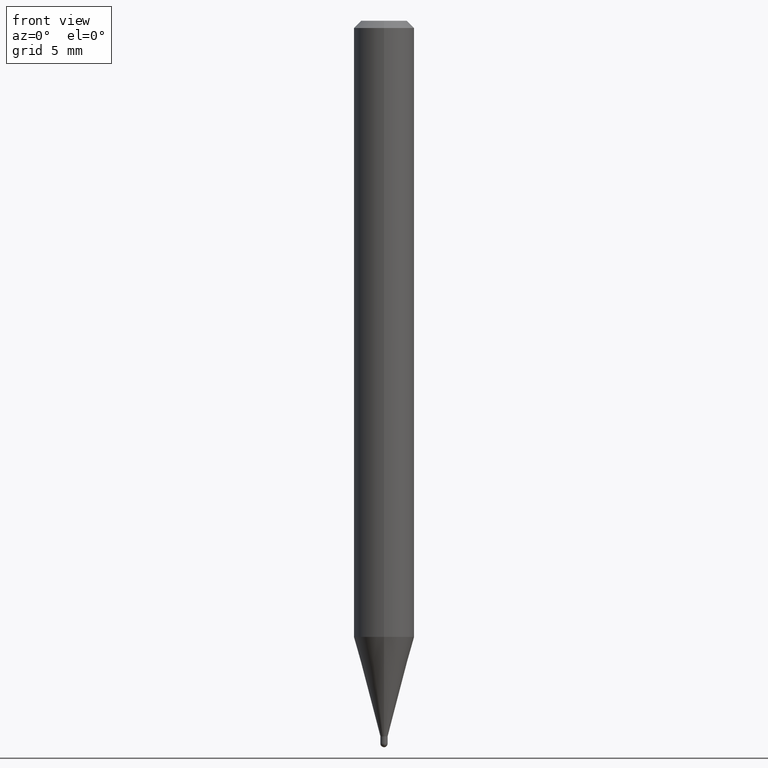
[diagram: clean part render]
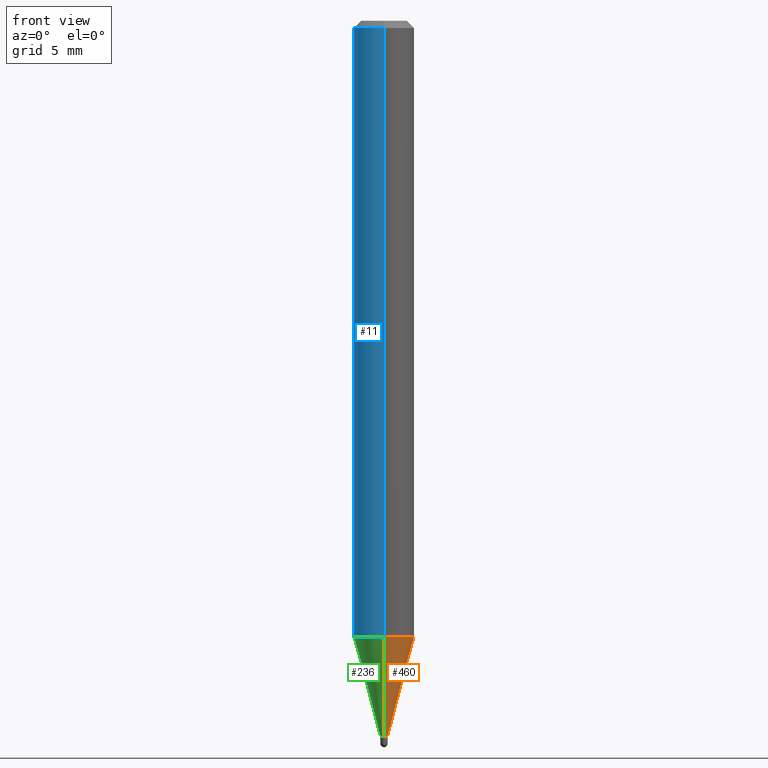
[diagram: same view with three faces highlighted in distinct colors, each labeled with its STEP entity id]
A machine part, front view with three faces highlighted in distinct colors.
Their STEP definitions:

[orange] entity #460 — the highlighted conical surface has half-angle 15 deg.
#29 = VERTEX_POINT ( 'NONE', #418 ) ;
#48 = CARTESIAN_POINT ( 'NONE',  ( -5.237222008261413811E-17, -0.007500000000005628033, -1.477500000000000036 ) ) ;
#59 = CARTESIAN_POINT ( 'NONE',  ( 3.613188878976562121E-29, -5.158651193700510318E-15, -1.477500000000000036 ) ) ;
#66 = CARTESIAN_POINT ( 'NONE',  ( 2.486899575160704889E-16, 0.007499999999995310765, -1.477500000000000036 ) ) ;
#72 = EDGE_LOOP ( 'NONE', ( #116, #442, #481, #152 ) ) ;
#82 = EDGE_CURVE ( 'NONE', #387, #86, #413, .T. ) ;
#86 = VERTEX_POINT ( 'NONE', #66 ) ;
#101 = AXIS2_PLACEMENT_3D ( 'NONE', #464, #147, #257 ) ;
#116 = ORIENTED_EDGE ( 'NONE', *, *, #82, .T. ) ;
#118 = LINE ( 'NONE', #199, #164 ) ;
#119 = CARTESIAN_POINT ( 'NONE',  ( 5.329070518204697350E-17, 0.007499999999995310765, -1.477500000000000036 ) ) ;
#129 = EDGE_CURVE ( 'NONE', #86, #207, #318, .T. ) ;
#147 = DIRECTION ( 'NONE',  ( -2.445474706583121780E-29, 3.491472889137400899E-15, 1.000000000000000000 ) ) ;
#151 = AXIS2_PLACEMENT_3D ( 'NONE', #59, #485, #215 ) ;
#152 = ORIENTED_EDGE ( 'NONE', *, *, #217, .F. ) ;
#158 = DIRECTION ( 'NONE',  ( 1.839019923739649619E-15, 0.2588190451025318972, 0.9659258262890650926 ) ) ;
#164 = VECTOR ( 'NONE', #229, 39.37007874015748854 ) ;
#188 = AXIS2_PLACEMENT_3D ( 'NONE', #421, #381, #423 ) ;
#199 = CARTESIAN_POINT ( 'NONE',  ( -5.237222008261413811E-17, -0.007500000000005628033, -1.477500000000000036 ) ) ;
#207 = VERTEX_POINT ( 'NONE', #438 ) ;
#215 = DIRECTION ( 'NONE',  ( -6.982962677686265133E-15, -1.000000000000000000, 0.000000000000000000 ) ) ;
#217 = EDGE_CURVE ( 'NONE', #387, #29, #118, .T. ) ;
#229 = DIRECTION ( 'NONE',  ( -1.807323732225379049E-15, -0.2588190451025252359, 0.9659258262890670910 ) ) ;
#257 = DIRECTION ( 'NONE',  ( -6.982962677686265133E-15, -1.000000000000000000, 0.000000000000000000 ) ) ;
#264 = CONICAL_SURFACE ( 'NONE', #151, 0.007500000000000469833, 0.2617993877991575125 ) ;
#318 = LINE ( 'NONE', #119, #385 ) ;
#326 = FACE_OUTER_BOUND ( 'NONE', #72, .T. ) ;
#336 = CIRCLE ( 'NONE', #188, 0.06250000000000000000 ) ;
#381 = DIRECTION ( 'NONE',  ( -2.445474706583121780E-29, 3.491472889137400899E-15, 1.000000000000000000 ) ) ;
#385 = VECTOR ( 'NONE', #158, 39.37007874015748854 ) ;
#387 = VERTEX_POINT ( 'NONE', #48 ) ;
#413 = CIRCLE ( 'NONE', #101, 0.007500000000000469833 ) ;
#418 = CARTESIAN_POINT ( 'NONE',  ( -4.364351673553606080E-16, -0.06250000000000444089, -1.272237205583719888 ) ) ;
#421 = CARTESIAN_POINT ( 'NONE',  ( 3.111223907028978359E-29, -4.441981711847484766E-15, -1.272237205583720110 ) ) ;
#423 = DIRECTION ( 'NONE',  ( -6.982962677686265922E-15, -1.000000000000000000, 4.370956789862821150E-15 ) ) ;
#438 = CARTESIAN_POINT ( 'NONE',  ( 4.440892098500935790E-16, 0.06249999999999555911, -1.272237205583720332 ) ) ;
#442 = ORIENTED_EDGE ( 'NONE', *, *, #129, .T. ) ;
#460 = ADVANCED_FACE ( 'NONE', ( #326 ), #264, .T. ) ;
#464 = CARTESIAN_POINT ( 'NONE',  ( 3.613188878976562121E-29, -5.158651193700510318E-15, -1.477500000000000036 ) ) ;
#481 = ORIENTED_EDGE ( 'NONE', *, *, #506, .F. ) ;
#485 = DIRECTION ( 'NONE',  ( -2.445474706583121780E-29, 3.491472889137400899E-15, 1.000000000000000000 ) ) ;
#506 = EDGE_CURVE ( 'NONE', #29, #207, #336, .T. ) ;

[blue] entity #11 — the highlighted cylindrical surface (edge-blend (fillet) strip) has radius 1.5875 mm, axis along (-0, 0, 1).
#5 = LINE ( 'NONE', #482, #225 ) ;
#10 = DIRECTION ( 'NONE',  ( -2.445474706583121780E-29, 3.491472889137400899E-15, 1.000000000000000000 ) ) ;
#11 = ADVANCED_FACE ( 'NONE', ( #261 ), #297, .T. ) ;
#29 = VERTEX_POINT ( 'NONE', #418 ) ;
#43 = ORIENTED_EDGE ( 'NONE', *, *, #342, .F. ) ;
#44 = CIRCLE ( 'NONE', #370, 0.06250000000000000000 ) ;
#52 = CARTESIAN_POINT ( 'NONE',  ( 4.440892098500625669E-16, 0.06250000000000000000, -2.182170555710875562E-16 ) ) ;
#81 = VECTOR ( 'NONE', #448, 39.37007874015748143 ) ;
#84 = VERTEX_POINT ( 'NONE', #461 ) ;
#88 = EDGE_LOOP ( 'NONE', ( #43, #483, #404, #426 ) ) ;
#96 = CARTESIAN_POINT ( 'NONE',  ( 4.440892098500938748E-16, 0.06249999999999995143, -0.01500000000000028394 ) ) ;
#111 = DIRECTION ( 'NONE',  ( -2.445474706583121780E-29, 3.491472889137400899E-15, 1.000000000000000000 ) ) ;
#179 = AXIS2_PLACEMENT_3D ( 'NONE', #429, #111, #184 ) ;
#184 = DIRECTION ( 'NONE',  ( -6.982962677686265922E-15, -1.000000000000000000, 3.491472889137400899E-15 ) ) ;
#204 = DIRECTION ( 'NONE',  ( -6.982962677686265922E-15, -1.000000000000000000, 4.370956789862821150E-15 ) ) ;
#207 = VERTEX_POINT ( 'NONE', #438 ) ;
#225 = VECTOR ( 'NONE', #281, 39.37007874015748143 ) ;
#240 = AXIS2_PLACEMENT_3D ( 'NONE', #284, #450, #317 ) ;
#261 = FACE_OUTER_BOUND ( 'NONE', #88, .T. ) ;
#281 = DIRECTION ( 'NONE',  ( -2.445474706583121780E-29, 3.491472889137400899E-15, 1.000000000000000000 ) ) ;
#284 = CARTESIAN_POINT ( 'NONE',  ( 3.668212059874699521E-31, -5.237209333706124349E-17, -0.01500000000000006710 ) ) ;
#297 = CYLINDRICAL_SURFACE ( 'NONE', #179, 0.06250000000000000000 ) ;
#306 = EDGE_CURVE ( 'NONE', #29, #84, #5, .T. ) ;
#317 = DIRECTION ( 'NONE',  ( -6.982962677686265922E-15, -1.000000000000000000, 3.483106191921935554E-15 ) ) ;
#324 = LINE ( 'NONE', #52, #81 ) ;
#342 = EDGE_CURVE ( 'NONE', #207, #355, #324, .T. ) ;
#348 = EDGE_CURVE ( 'NONE', #207, #29, #44, .T. ) ;
#355 = VERTEX_POINT ( 'NONE', #96 ) ;
#367 = CARTESIAN_POINT ( 'NONE',  ( 3.111223907028978359E-29, -4.441981711847484766E-15, -1.272237205583720110 ) ) ;
#370 = AXIS2_PLACEMENT_3D ( 'NONE', #367, #10, #204 ) ;
#394 = EDGE_CURVE ( 'NONE', #355, #84, #469, .T. ) ;
#404 = ORIENTED_EDGE ( 'NONE', *, *, #306, .T. ) ;
#418 = CARTESIAN_POINT ( 'NONE',  ( -4.364351673553606080E-16, -0.06250000000000444089, -1.272237205583719888 ) ) ;
#426 = ORIENTED_EDGE ( 'NONE', *, *, #394, .F. ) ;
#429 = CARTESIAN_POINT ( 'NONE',  ( 0.000000000000000000, 0.000000000000000000, 0.000000000000000000 ) ) ;
#438 = CARTESIAN_POINT ( 'NONE',  ( 4.440892098500935790E-16, 0.06249999999999555911, -1.272237205583720332 ) ) ;
#448 = DIRECTION ( 'NONE',  ( -2.445474706583121780E-29, 3.491472889137400899E-15, 1.000000000000000000 ) ) ;
#450 = DIRECTION ( 'NONE',  ( -2.445474706583121780E-29, 3.491472889137400899E-15, 1.000000000000000000 ) ) ;
#461 = CARTESIAN_POINT ( 'NONE',  ( -4.364351673553912750E-16, -0.06250000000000005551, -0.01499999999999984852 ) ) ;
#469 = CIRCLE ( 'NONE', #240, 0.06250000000000000000 ) ;
#482 = CARTESIAN_POINT ( 'NONE',  ( -4.364351673553916201E-16, -0.06250000000000000000, 2.182170555710875562E-16 ) ) ;
#483 = ORIENTED_EDGE ( 'NONE', *, *, #348, .T. ) ;

[green] entity #236 — the highlighted conical surface has half-angle 15 deg.
#10 = DIRECTION ( 'NONE',  ( -2.445474706583121780E-29, 3.491472889137400899E-15, 1.000000000000000000 ) ) ;
#29 = VERTEX_POINT ( 'NONE', #418 ) ;
#31 = DIRECTION ( 'NONE',  ( -6.982962677686265133E-15, -1.000000000000000000, 0.000000000000000000 ) ) ;
#44 = CIRCLE ( 'NONE', #370, 0.06250000000000000000 ) ;
#48 = CARTESIAN_POINT ( 'NONE',  ( -5.237222008261413811E-17, -0.007500000000005628033, -1.477500000000000036 ) ) ;
#51 = EDGE_CURVE ( 'NONE', #86, #387, #65, .T. ) ;
#65 = CIRCLE ( 'NONE', #132, 0.007500000000000469833 ) ;
#66 = CARTESIAN_POINT ( 'NONE',  ( 2.486899575160704889E-16, 0.007499999999995310765, -1.477500000000000036 ) ) ;
#86 = VERTEX_POINT ( 'NONE', #66 ) ;
#106 = DIRECTION ( 'NONE',  ( -6.982962677686265133E-15, -1.000000000000000000, 0.000000000000000000 ) ) ;
#113 = CARTESIAN_POINT ( 'NONE',  ( 3.613188878976562121E-29, -5.158651193700510318E-15, -1.477500000000000036 ) ) ;
#118 = LINE ( 'NONE', #199, #164 ) ;
#119 = CARTESIAN_POINT ( 'NONE',  ( 5.329070518204697350E-17, 0.007499999999995310765, -1.477500000000000036 ) ) ;
#120 = ORIENTED_EDGE ( 'NONE', *, *, #129, .F. ) ;
#129 = EDGE_CURVE ( 'NONE', #86, #207, #318, .T. ) ;
#132 = AXIS2_PLACEMENT_3D ( 'NONE', #113, #337, #106 ) ;
#158 = DIRECTION ( 'NONE',  ( 1.839019923739649619E-15, 0.2588190451025318972, 0.9659258262890650926 ) ) ;
#164 = VECTOR ( 'NONE', #229, 39.37007874015748854 ) ;
#178 = ORIENTED_EDGE ( 'NONE', *, *, #217, .T. ) ;
#199 = CARTESIAN_POINT ( 'NONE',  ( -5.237222008261413811E-17, -0.007500000000005628033, -1.477500000000000036 ) ) ;
#204 = DIRECTION ( 'NONE',  ( -6.982962677686265922E-15, -1.000000000000000000, 4.370956789862821150E-15 ) ) ;
#207 = VERTEX_POINT ( 'NONE', #438 ) ;
#217 = EDGE_CURVE ( 'NONE', #387, #29, #118, .T. ) ;
#228 = DIRECTION ( 'NONE',  ( -2.445474706583121780E-29, 3.491472889137400899E-15, 1.000000000000000000 ) ) ;
#229 = DIRECTION ( 'NONE',  ( -1.807323732225379049E-15, -0.2588190451025252359, 0.9659258262890670910 ) ) ;
#236 = ADVANCED_FACE ( 'NONE', ( #273 ), #401, .T. ) ;
#251 = AXIS2_PLACEMENT_3D ( 'NONE', #507, #228, #31 ) ;
#273 = FACE_OUTER_BOUND ( 'NONE', #457, .T. ) ;
#318 = LINE ( 'NONE', #119, #385 ) ;
#337 = DIRECTION ( 'NONE',  ( -2.445474706583121780E-29, 3.491472889137400899E-15, 1.000000000000000000 ) ) ;
#346 = ORIENTED_EDGE ( 'NONE', *, *, #348, .F. ) ;
#348 = EDGE_CURVE ( 'NONE', #207, #29, #44, .T. ) ;
#359 = ORIENTED_EDGE ( 'NONE', *, *, #51, .T. ) ;
#367 = CARTESIAN_POINT ( 'NONE',  ( 3.111223907028978359E-29, -4.441981711847484766E-15, -1.272237205583720110 ) ) ;
#370 = AXIS2_PLACEMENT_3D ( 'NONE', #367, #10, #204 ) ;
#385 = VECTOR ( 'NONE', #158, 39.37007874015748854 ) ;
#387 = VERTEX_POINT ( 'NONE', #48 ) ;
#401 = CONICAL_SURFACE ( 'NONE', #251, 0.007500000000000469833, 0.2617993877991575125 ) ;
#418 = CARTESIAN_POINT ( 'NONE',  ( -4.364351673553606080E-16, -0.06250000000000444089, -1.272237205583719888 ) ) ;
#438 = CARTESIAN_POINT ( 'NONE',  ( 4.440892098500935790E-16, 0.06249999999999555911, -1.272237205583720332 ) ) ;
#457 = EDGE_LOOP ( 'NONE', ( #120, #359, #178, #346 ) ) ;
#507 = CARTESIAN_POINT ( 'NONE',  ( 3.613188878976562121E-29, -5.158651193700510318E-15, -1.477500000000000036 ) ) ;